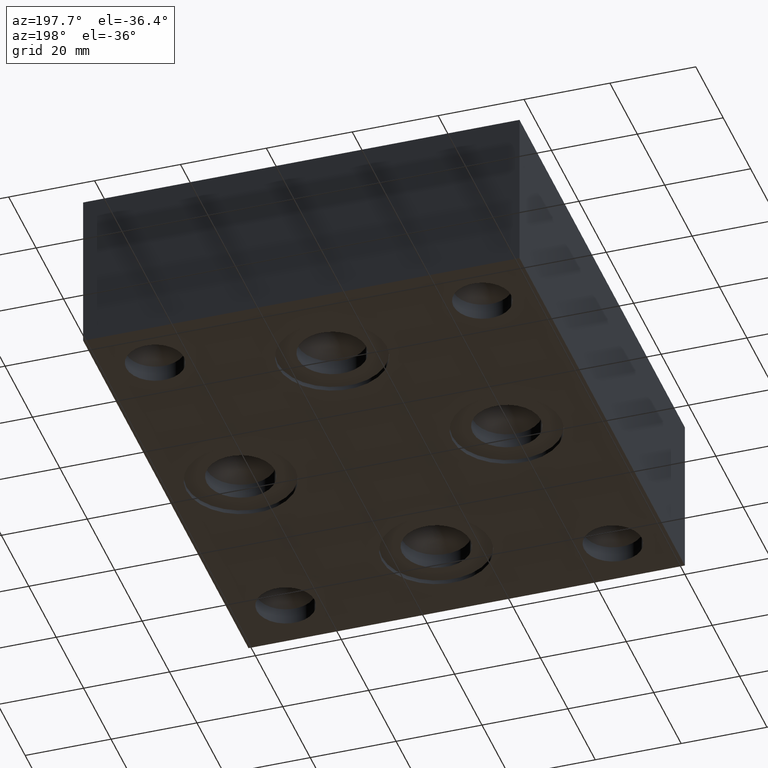
[diagram: clean part render]
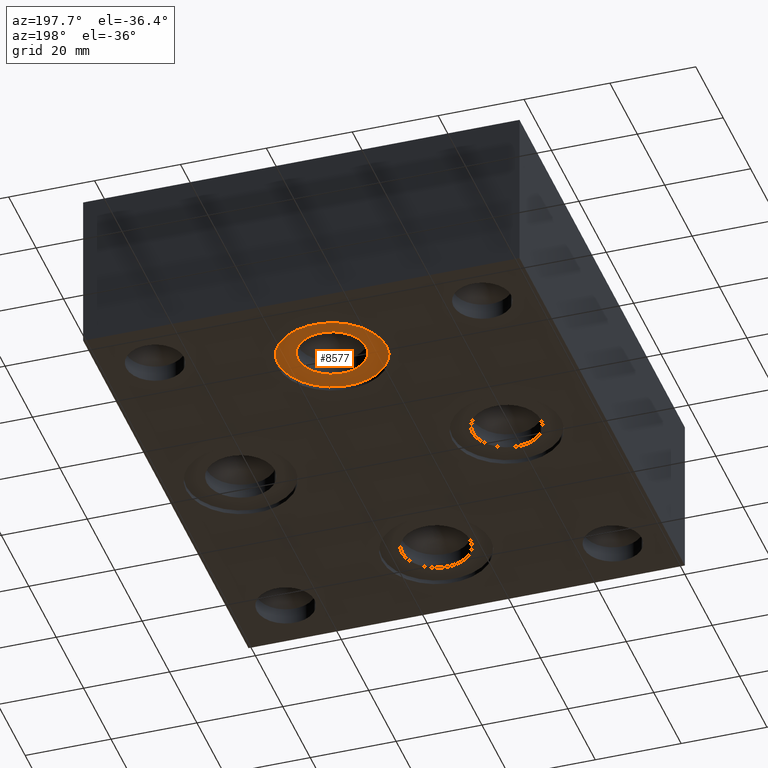
[diagram: same view with one face highlighted and labeled with its STEP entity id]
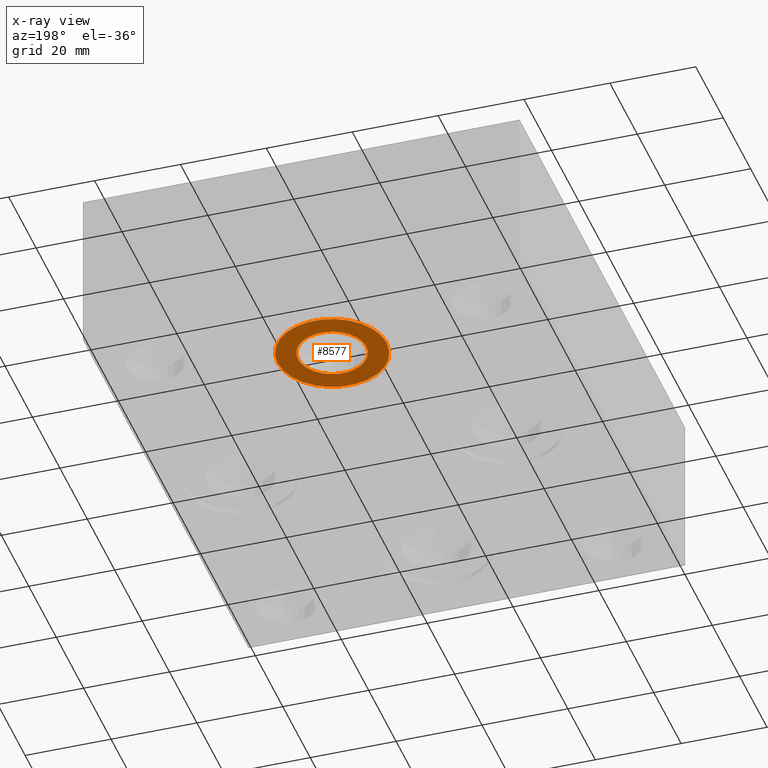
[diagram: x-ray of the same camera — body ghosted, the highlighted face saturated]
A machine part, auxiliary view. The second image highlights one B-rep face of the part: STEP entity #8577.
The next image is the same camera in x-ray: the body ghosted, the highlighted face saturated — about 0% of this face is hidden behind the body in this view.
In plain terms, the highlighted planar face has unit normal (0, 0, -1).
Its self-contained STEP definition (entity closure, byte-faithful):
#51=CIRCLE('',#8926,12.7);
#52=CIRCLE('',#8927,12.7);
#53=CIRCLE('',#8929,7.9375);
#219=FACE_BOUND('',#1464,.T.);
#987=FACE_OUTER_BOUND('',#1463,.T.);
#1463=EDGE_LOOP('',(#7252,#7253));
#1464=EDGE_LOOP('',(#7254));
#3900=VERTEX_POINT('',#14455);
#3901=VERTEX_POINT('',#14457);
#3902=VERTEX_POINT('',#14461);
#5053=EDGE_CURVE('',#3901,#3900,#51,.T.);
#5054=EDGE_CURVE('',#3900,#3901,#52,.T.);
#5055=EDGE_CURVE('',#3902,#3902,#53,.T.);
#7252=ORIENTED_EDGE('',*,*,#5053,.T.);
#7253=ORIENTED_EDGE('',*,*,#5054,.T.);
#7254=ORIENTED_EDGE('',*,*,#5055,.F.);
#7829=PLANE('',#8928);
#8577=ADVANCED_FACE('',(#987,#219),#7829,.T.);
#8926=AXIS2_PLACEMENT_3D('',#14458,#10405,#10406);
#8927=AXIS2_PLACEMENT_3D('',#14459,#10407,#10408);
#8928=AXIS2_PLACEMENT_3D('',#14460,#10409,#10410);
#8929=AXIS2_PLACEMENT_3D('',#14462,#10411,#10412);
#10405=DIRECTION('center_axis',(0.,0.,-1.));
#10406=DIRECTION('ref_axis',(1.,0.,0.));
#10407=DIRECTION('center_axis',(0.,0.,-1.));
#10408=DIRECTION('ref_axis',(1.,0.,0.));
#10409=DIRECTION('center_axis',(0.,0.,-1.));
#10410=DIRECTION('ref_axis',(1.,0.,0.));
#10411=DIRECTION('center_axis',(0.,0.,-1.));
#10412=DIRECTION('ref_axis',(1.,0.,0.));
#14455=CARTESIAN_POINT('',(38.1,98.171,1.016));
#14457=CARTESIAN_POINT('',(63.5,98.171,1.016));
#14458=CARTESIAN_POINT('Origin',(50.8,98.171,1.016));
#14459=CARTESIAN_POINT('Origin',(50.8,98.171,1.016));
#14460=CARTESIAN_POINT('Origin',(50.8,98.171,1.016));
#14461=CARTESIAN_POINT('',(42.8625,98.171,1.016));
#14462=CARTESIAN_POINT('Origin',(50.8,98.171,1.016));